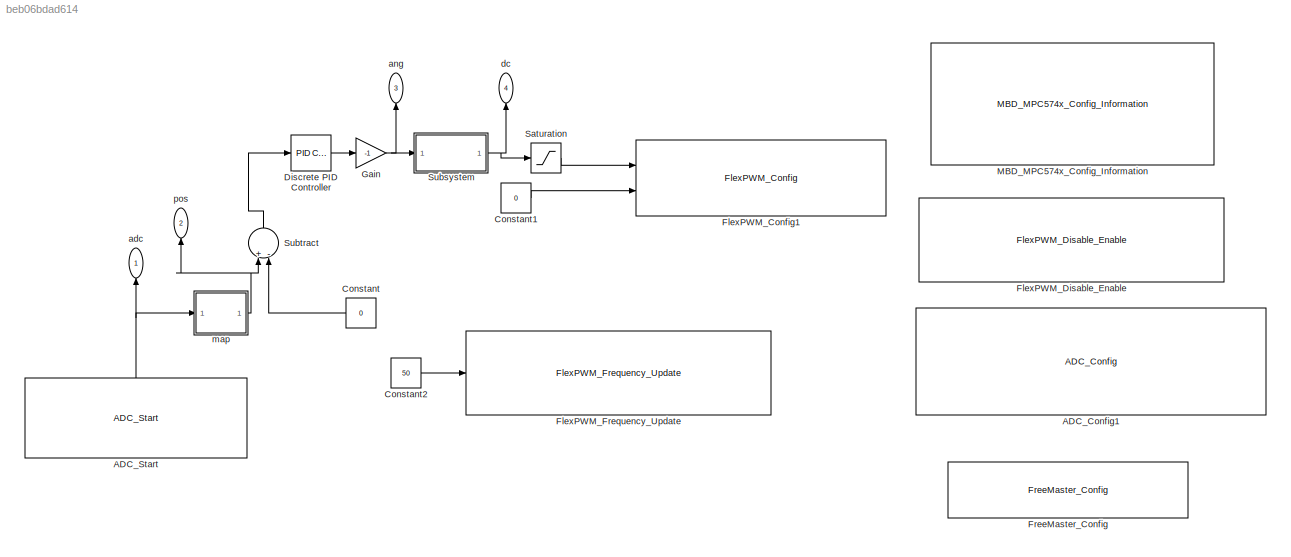
MODEL slx_beb06bdad614
KIND model
CONFIG AbsTol = auto
CONFIG EnableMultiTasking = off
CONFIG FixedStep = 4e-3
CONFIG InitFcn = mbd_mpc574x_consistency_checks(bdroot(gcs));
CONFIG MaxStep = auto
CONFIG MinStep = auto
CONFIG RelTol = 1e-3
CONFIG SampleTimeConstraint = Unconstrained
CONFIG Solver = FixedStepDiscrete
CONFIG SolverName = FixedStepDiscrete
CONFIG StartTime = 0.0
CONFIG StopTime = 10.0
BLOCK [Reference] ADC_Config1  REF=mbd_mpc574x_ec_toolbox/Motor Control Blocks/ADC Blocks/ADC_Config
  Ports = []
  SourceBlock = mbd_mpc574x_ec_toolbox/Motor Control Blocks/ADC Blocks/ADC_Config
  SourceProductName = NXP Model-Based Design Toolbox for MPC57xx MCUs
  SourceType = adc_mpc574x_config
BLOCK [Reference] ADC_Start  REF=mbd_mpc574x_ec_toolbox/Motor Control Blocks/ADC Blocks/ADC_Start
  Ports = [0, 1]
  SourceBlock = mbd_mpc574x_ec_toolbox/Motor Control Blocks/ADC Blocks/ADC_Start
  SourceProductName = NXP Model-Based Design Toolbox for MPC57xx MCUs
  SourceType = adc_mpc574x_start_block
BLOCK [Constant] Constant
  OutDataTypeStr = single
  Value = 0
BLOCK [Constant] Constant1
  OutDataTypeStr = single
  Value = 0
BLOCK [Constant] Constant2
  Commented = on
  OutDataTypeStr = uint32
  Value = 50
BLOCK [Reference] Discrete PID Controller  REF=simulink/Continuous/PID Controller
  Ports = [1, 1]
  SourceBlock = simulink/Continuous/PID Controller
  SourceProductBaseCode = SL
  SourceProductName = Simulink
  SourceType = PID 1dof
BLOCK [Reference] FlexPWM_Config1  REF=mbd_mpc574x_ec_toolbox/Motor Control Blocks/FlexPWM Blocks/FlexPWM_Config
  Ports = [2]
  Priority = 1
  SourceBlock = mbd_mpc574x_ec_toolbox/Motor Control Blocks/FlexPWM Blocks/FlexPWM_Config
  SourceProductName = NXP Model-Based Design Toolbox for MPC57xx MCUs
  SourceType = flexpwm_mpc574x_config
BLOCK [Reference] FlexPWM_Disable_Enable  REF=mbd_mpc574x_ec_toolbox/Motor Control Blocks/FlexPWM Blocks/FlexPWM_Disable_Enable
  Ports = []
  Priority = 1
  SourceBlock = mbd_mpc574x_ec_toolbox/Motor Control Blocks/FlexPWM Blocks/FlexPWM_Disable_Enable
  SourceProductName = NXP Model-Based Design Toolbox for MPC57xx MCUs
  SourceType = flexpwm_mpc574x_disen
BLOCK [Reference] FlexPWM_Frequency_Update  REF=mbd_mpc574x_ec_toolbox/Motor Control Blocks/FlexPWM Blocks/FlexPWM_Frequency_Update
  Commented = on
  Ports = [1]
  Priority = 1
  SourceBlock = mbd_mpc574x_ec_toolbox/Motor Control Blocks/FlexPWM Blocks/FlexPWM_Frequency_Update
  SourceProductName = NXP Model-Based Design Toolbox for MPC57xx MCUs
  SourceType = flexpwm_mpc574x_frequency_update
BLOCK [Reference] FreeMaster_Config  REF=mbd_mpc574x_ec_toolbox/Utility Blocks/FreeMaster_Config
  Ports = []
  SourceBlock = mbd_mpc574x_ec_toolbox/Utility Blocks/FreeMaster_Config
  SourceProductName = NXP Model-Based Design Toolbox for MPC57xx MCUs
  SourceType = fm_mpc574x_config
BLOCK [Gain] Gain
  Gain = -1
  OutDataTypeStr = Inherit: Inherit via internal rule
  ParamDataTypeStr = Inherit: Inherit via internal rule
  SaturateOnIntegerOverflow = off
BLOCK [Reference] MBD_MPC574x_Config_Information  REF=mbd_mpc574x_ec_toolbox/MBD_MPC574x_Config_Information
  Ports = []
  SourceBlock = mbd_mpc574x_ec_toolbox/MBD_MPC574x_Config_Information
  SourceProductName = NXP Model-Based Design Toolbox for MPC57xx MCUs
  SourceType = MBDTBX_EC_MPC574X
BLOCK [Saturate] Saturation
  InputPortMap = u0
  LowerLimit = 0.06
  Ports = [1, 1]
  UpperLimit = 0.08
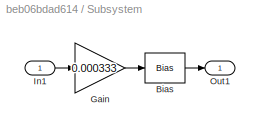
BLOCK [SubSystem] Subsystem
  Ports = [1, 1]
  RequestExecContextInheritance = off
BLOCK [Bias] Subsystem/Bias
  Bias = 0.075000
  SaturateOnIntegerOverflow = off
BLOCK [Gain] Subsystem/Gain
  Gain = 0.000333
  OutDataTypeStr = single
  ParamDataTypeStr = Inherit: Inherit via internal rule
  SaturateOnIntegerOverflow = off
BLOCK [Inport] Subsystem/In1
  IconDisplay = Port number
BLOCK [Outport] Subsystem/Out1
  IconDisplay = Port number
BLOCK [Sum] Subtract
  InputSameDT = off
  Inputs = +-
  OutDataTypeStr = Inherit: Inherit via internal rule
  Ports = [2, 1]
  SaturateOnIntegerOverflow = off
BLOCK [Outport] adc
  IconDisplay = Port number
BLOCK [Outport] ang
  IconDisplay = Port number
  Port = 3
BLOCK [Outport] dc
  IconDisplay = Port number
  Port = 4
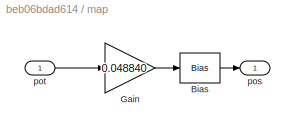
BLOCK [SubSystem] map
  Ports = [1, 1]
  RequestExecContextInheritance = off
BLOCK [Bias] map/Bias
  Bias = -100
  SaturateOnIntegerOverflow = off
BLOCK [Gain] map/Gain
  Gain = 0.048840
  OutDataTypeStr = single
  ParamDataTypeStr = Inherit: Inherit via internal rule
  SaturateOnIntegerOverflow = off
BLOCK [Outport] map/pos
  IconDisplay = Port number
BLOCK [Inport] map/pot
  IconDisplay = Port number
BLOCK [Outport] pos
  IconDisplay = Port number
  Port = 2
NET ADC_Start:1 -> adc:1, map:1
LINE Constant1:1 -> FlexPWM_Config1:2
LINE Constant2:1 -> FlexPWM_Frequency_Update:1
LINE Constant:1 -> Subtract:2
LINE Discrete PID Controller:1 -> Gain:1
NET Gain:1 -> Subsystem:1, ang:1
LINE Saturation:1 -> FlexPWM_Config1:1
LINE Subsystem/Bias:1 -> Subsystem/Out1:1
LINE Subsystem/Gain:1 -> Subsystem/Bias:1
LINE Subsystem/In1:1 -> Subsystem/Gain:1
NET Subsystem:1 -> Saturation:1, dc:1
LINE Subtract:1 -> Discrete PID Controller:1
LINE map/Bias:1 -> map/pos:1
LINE map/Gain:1 -> map/Bias:1
LINE map/pot:1 -> map/Gain:1
NET map:1 -> Subtract:1, pos:1
note: NET lines group one-source signal fan-out (src -> all destinations, sorted); 1:1 wires keep LINE
